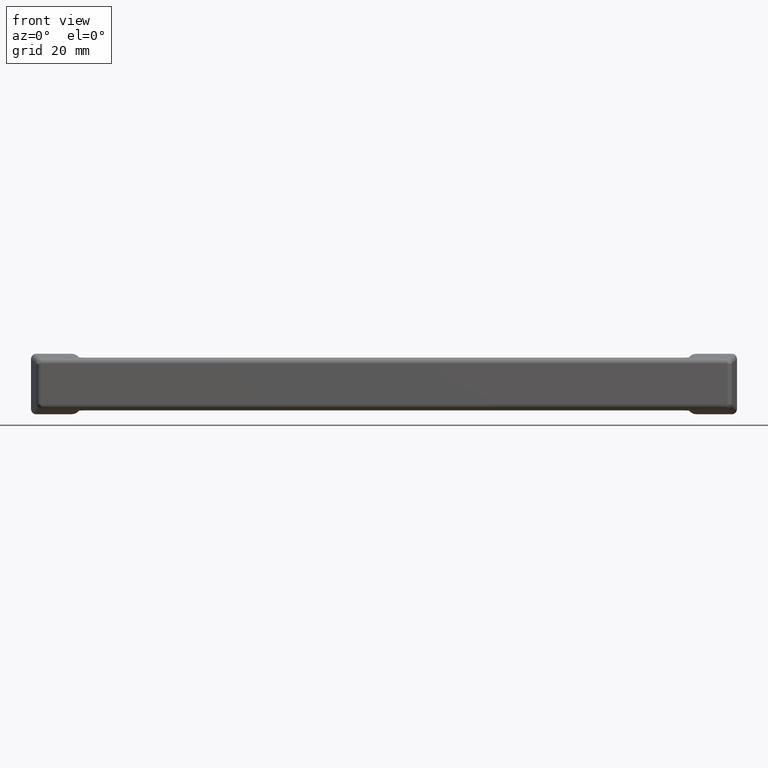
[diagram: clean part render]
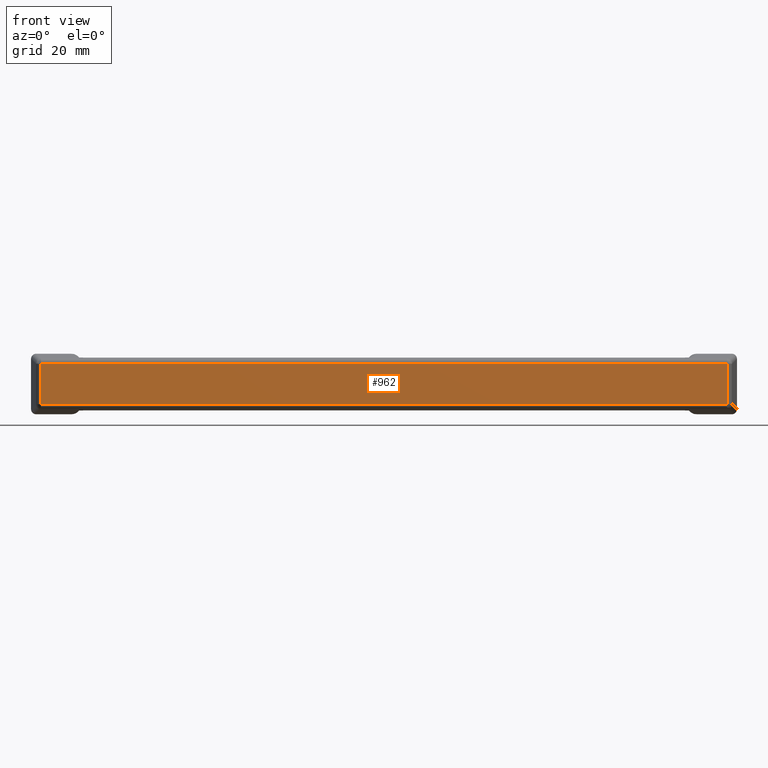
[diagram: same view with one face highlighted and labeled with its STEP entity id]
A machine part, front view. The second image highlights one B-rep face of the part: STEP entity #962.
In plain terms, the highlighted face is a freeform B-spline surface patch.
Its self-contained STEP definition (entity closure, byte-faithful):
#927=CARTESIAN_POINT('',(74.823223061769710,-25.448281288146969,5.599968918357599));
#928=CARTESIAN_POINT('',(-74.823326896760818,-25.448281288146969,5.599968918357599));
#929=CARTESIAN_POINT('',(74.823223061769710,-25.448281288146969,14.459426134114301));
#930=CARTESIAN_POINT('',(-74.823326896760818,-25.448281288146969,14.459426134114301));
#931=B_SPLINE_SURFACE_WITH_KNOTS('',1,1,((#927,#929),(#928,#930)),.UNSPECIFIED.,.F.,.F.,.U.,(2,2),(2,2),(0.0,149.646549958530500),(0.0,8.859457215756702),.UNSPECIFIED.);
#932=CARTESIAN_POINT('',(68.027291863981603,-25.448281288146969,14.057089467914681));
#933=VERTEX_POINT('',#932);
#934=CARTESIAN_POINT('',(-68.027392049701703,-25.448281288146969,14.057089467914681));
#935=VERTEX_POINT('',#934);
#936=CARTESIAN_POINT('',(68.027291863981603,-25.448281288146969,14.057089467914681));
#937=CARTESIAN_POINT('',(-68.027392049701703,-25.448281288146969,14.057089467914681));
#938=QUASI_UNIFORM_CURVE('',1,(#936,#937),.UNSPECIFIED.,.F.,.U.);
#939=EDGE_CURVE('',#933,#935,#938,.T.);
#940=ORIENTED_EDGE('',*,*,#939,.T.);
#941=CARTESIAN_POINT('',(-68.027392049701703,-25.448281288146969,6.002305368511076));
#942=VERTEX_POINT('',#941);
#943=CARTESIAN_POINT('',(-68.027392049701703,-25.448281288146969,14.057089467914681));
#944=CARTESIAN_POINT('',(-68.027392049701703,-25.448281288146969,6.002305368511076));
#945=QUASI_UNIFORM_CURVE('',1,(#943,#944),.UNSPECIFIED.,.F.,.U.);
#946=EDGE_CURVE('',#935,#942,#945,.T.);
#947=ORIENTED_EDGE('',*,*,#946,.T.);
#948=CARTESIAN_POINT('',(68.027291863981603,-25.448281288146969,6.002305368511076));
#949=VERTEX_POINT('',#948);
#950=CARTESIAN_POINT('',(-68.027392049701703,-25.448281288146969,6.002305368511076));
#951=CARTESIAN_POINT('',(68.027291863981603,-25.448281288146969,6.002305368511076));
#952=QUASI_UNIFORM_CURVE('',1,(#950,#951),.UNSPECIFIED.,.F.,.U.);
#953=EDGE_CURVE('',#942,#949,#952,.T.);
#954=ORIENTED_EDGE('',*,*,#953,.T.);
#955=CARTESIAN_POINT('',(68.027291863981603,-25.448281288146969,6.002305368511076));
#956=CARTESIAN_POINT('',(68.027291863981603,-25.448281288146969,14.057089467914681));
#957=QUASI_UNIFORM_CURVE('',1,(#955,#956),.UNSPECIFIED.,.F.,.U.);
#958=EDGE_CURVE('',#949,#933,#957,.T.);
#959=ORIENTED_EDGE('',*,*,#958,.T.);
#960=EDGE_LOOP('',(#940,#947,#954,#959));
#961=FACE_OUTER_BOUND('',#960,.T.);
#962=ADVANCED_FACE('',(#961),#931,.F.);